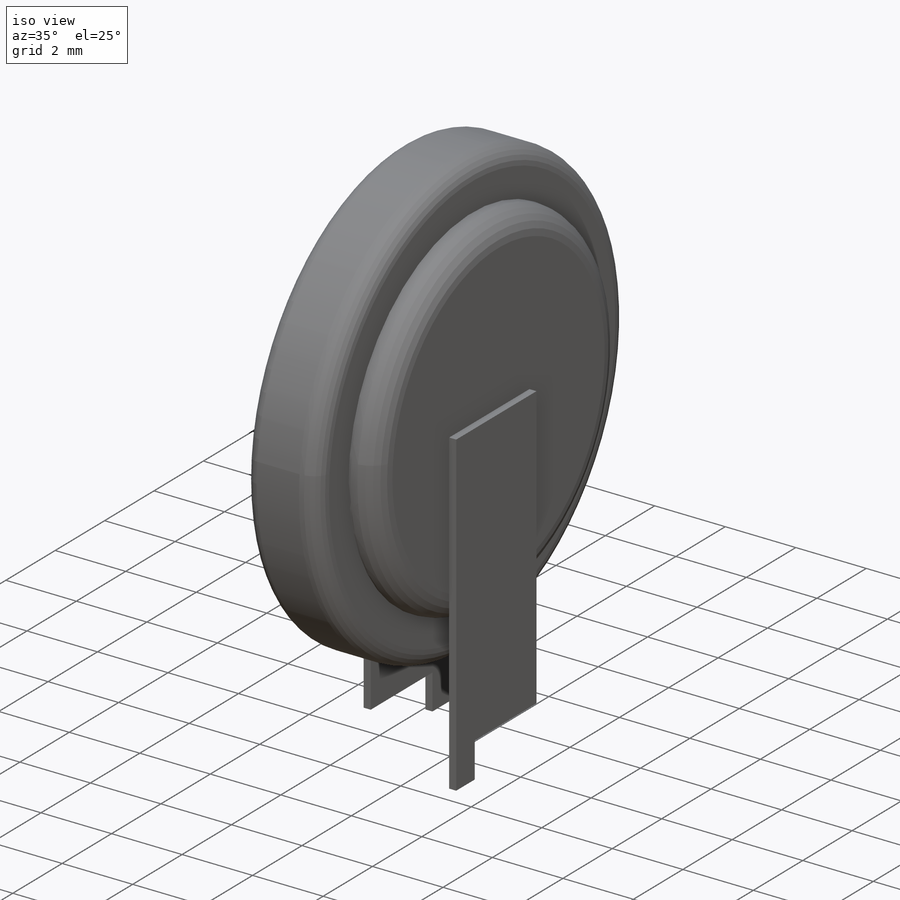
[diagram: iso view]
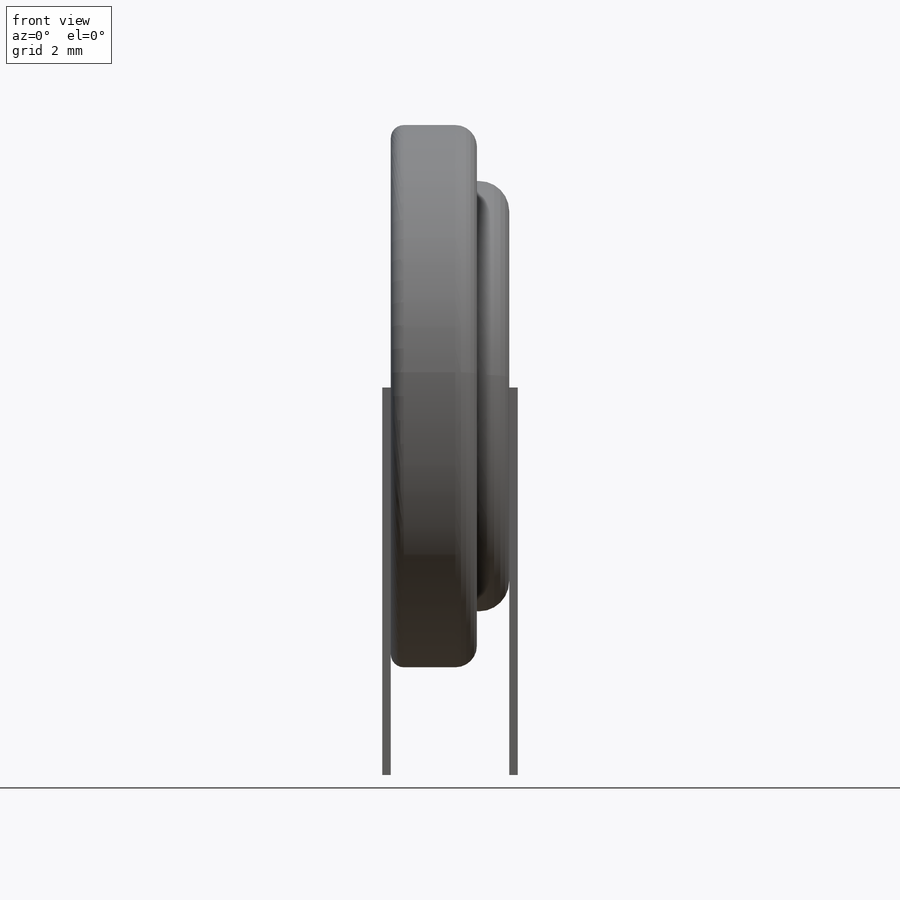
[diagram: front view]
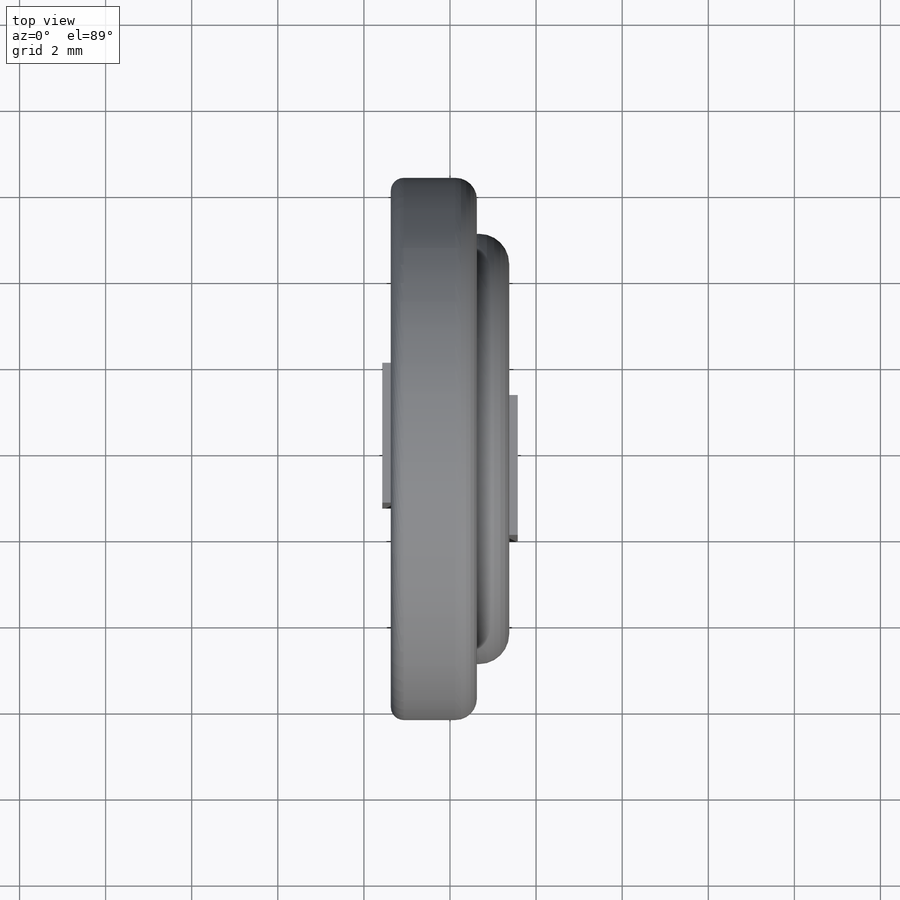
[diagram: top view]
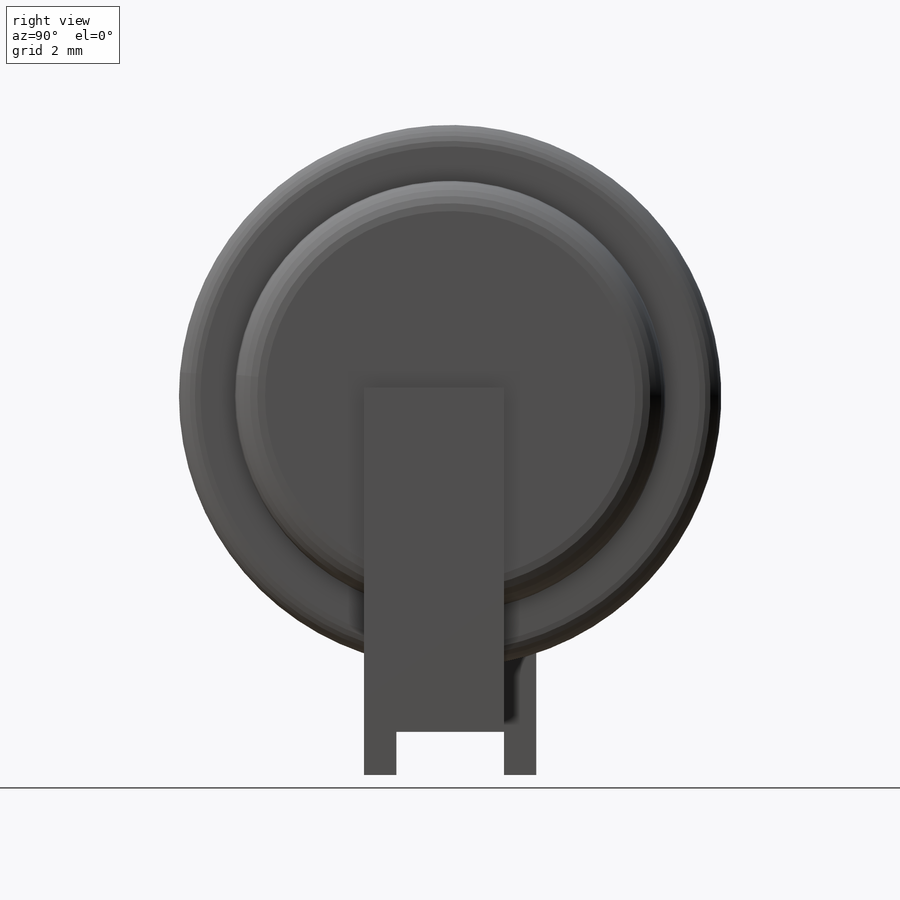
[diagram: right view]
SOLIDWORKS PART (.sldprt)
format: sldprt  version: not decoded by parser v0  size: 263,168 bytes
history: native  units: mm
features: sketch x3, extrude x2, material x1, revolve x1 (+12 scaffold rows collapsed)
feature tree (19):
  scaffold x12  (default folders/planes/origin — collapsed)
  material  "Material <not specified>"
  sketch  "Sketch1"  dims[D5=0.7mm D6=0.5mm D7=0.3mm D1=6.3mm D2=2.75mm D3=5.0mm D4=0.75mm D8=6.3mm D9=1.5mm]
  revolve  "Revolve1"  Angle=360deg
  sketch  "Sketch3"  dims[c1.D1=0.75mm c1.D2=1.625mm c1.D3=1.0mm c1.D4=8.0mm c1.D5=5.0mm c2.D2=1.625mm c2.D3=1.0mm]
  sketch  "Sketch5"  dims[c1.D1=0.75mm c1.D2=1.625mm c1.D3=1.0mm c1.D4=8.0mm c1.D5=1.0mm c2.D2=3.25mm]
  extrude  "Boss-Extrude2"  Depth=0.2mm
  extrude  "Boss-Extrude3"  Depth=0.2mm
decode coverage: 6 of 6 modeling features carry decoded parameters
note: suppression state not decoded; provenance and decode notes live in map.json
